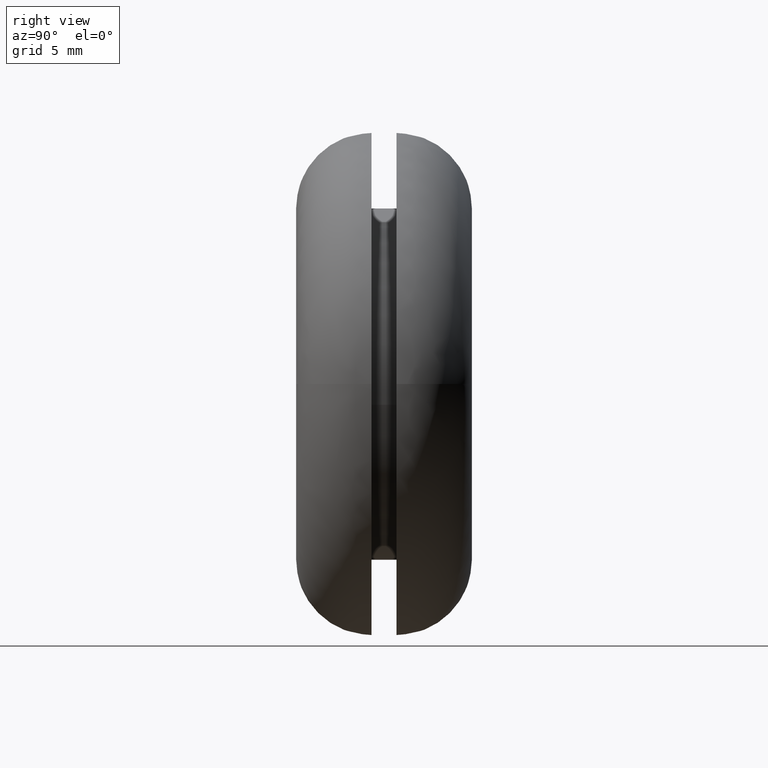
[diagram: clean part render]
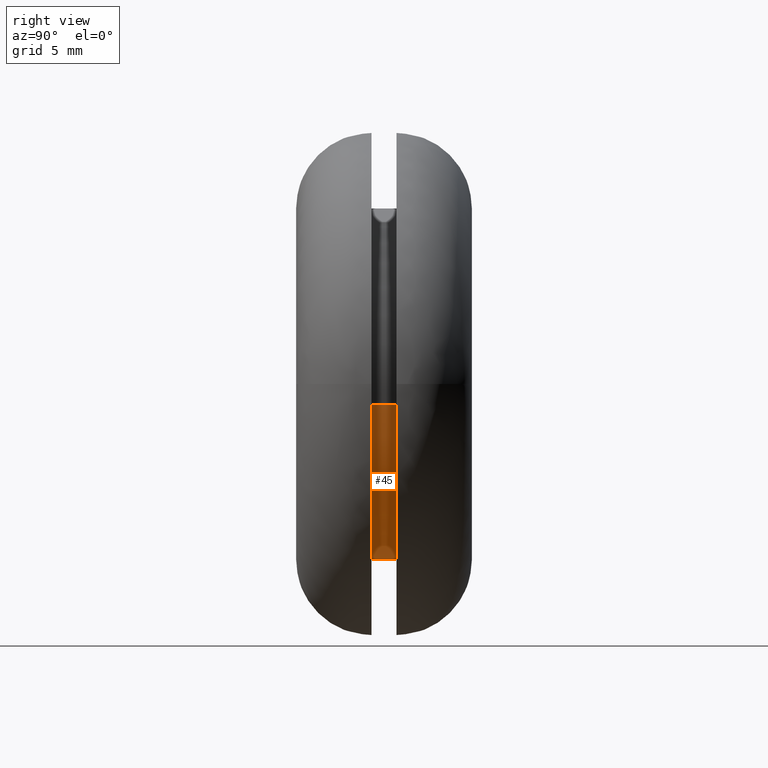
[diagram: same view with one face highlighted and labeled with its STEP entity id]
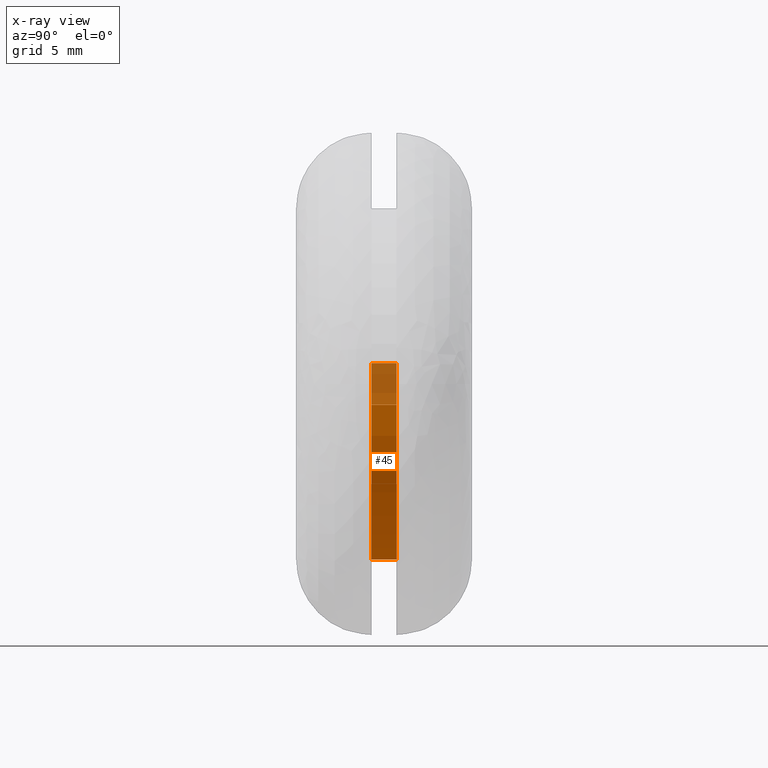
[diagram: x-ray of the same camera — body ghosted, the highlighted face saturated]
A machine part, right view. The second image highlights one B-rep face of the part: STEP entity #45.
The next image is the same camera in x-ray: the body ghosted, the highlighted face saturated — about 21% of this face is hidden behind the body in this view.
In plain terms, the highlighted cylindrical surface (partial cylindrical patch) has radius 7 mm, axis along (0, 1, 0).
Its self-contained STEP definition (entity closure, byte-faithful):
#45=ADVANCED_FACE('',(#107),#106,.T.);
#106=CYLINDRICAL_SURFACE('',#208,7.00000000000E+000);
#107=FACE_OUTER_BOUND('',#209,.T.);
#205=CARTESIAN_POINT('',(5.74092842048E-016,4.02500000000E+000,9.87831843366E-016));
#206=DIRECTION('',(5.05055682711E-016,1.00000000000E+000,4.78646234808E-015));
#207=DIRECTION('',(-9.93009526364E-001,-6.34413156929E-017,1.18034234657E-001));
#208=AXIS2_PLACEMENT_3D('',#205,#206,#207);
#209=EDGE_LOOP('',(#358,#359,#360,#361,#362,#363));
#358=ORIENTED_EDGE('',*,*,#421,.F.);
#359=ORIENTED_EDGE('',*,*,#423,.F.);
#360=ORIENTED_EDGE('',*,*,#430,.T.);
#361=ORIENTED_EDGE('',*,*,#406,.T.);
#362=ORIENTED_EDGE('',*,*,#408,.T.);
#363=ORIENTED_EDGE('',*,*,#431,.F.);
#406=EDGE_CURVE('',#480,#481,#482,.T.);
#408=EDGE_CURVE('',#481,#488,#495,.T.);
#421=EDGE_CURVE('',#585,#586,#587,.T.);
#423=EDGE_CURVE('',#593,#585,#600,.T.);
#430=EDGE_CURVE('',#593,#480,#648,.T.);
#431=EDGE_CURVE('',#586,#488,#654,.T.);
#480=VERTEX_POINT('',#726);
#481=VERTEX_POINT('',#727);
#482=CIRCLE('',#731,7.00000000000E+000);
#488=VERTEX_POINT('',#732);
#495=CIRCLE('',#740,7.00000000000E+000);
#585=VERTEX_POINT('',#801);
#586=VERTEX_POINT('',#802);
#587=CIRCLE('',#806,7.00000000000E+000);
#593=VERTEX_POINT('',#807);
#600=CIRCLE('',#815,7.00000000000E+000);
#648=(BOUNDED_CURVE() B_SPLINE_CURVE(1,(#846,#847),.UNSPECIFIED.,.F.,.F.) B_SPLINE_CURVE_WITH_KNOTS((2,2),(8.33333730703E-002,9.16666640476E-001),.UNSPECIFIED.) CURVE() GEOMETRIC_REPRESENTATION_ITEM() RATIONAL_B_SPLINE_CURVE((1.00000000000E+000,1.00000000000E+000)) REPRESENTATION_ITEM('') );
#654=(BOUNDED_CURVE() B_SPLINE_CURVE(1,(#848,#849),.UNSPECIFIED.,.F.,.F.) B_SPLINE_CURVE_WITH_KNOTS((2,2),(8.33333333348E-002,9.16666666667E-001),.UNSPECIFIED.) CURVE() GEOMETRIC_REPRESENTATION_ITEM() RATIONAL_B_SPLINE_CURVE((7.50000000000E-001,7.50000000000E-001)) REPRESENTATION_ITEM('') );
#726=CARTESIAN_POINT('',(-6.95106668455E+000,4.00000000000E+000,8.26239642538E-001));
#727=CARTESIAN_POINT('',(-1.11022302463E-015,4.00000000000E+000,-7.00000000000E+000));
#728=CARTESIAN_POINT('',(7.88258347484E-013,4.00000000000E+000,1.73772107814E-012));
#729=DIRECTION('',(-1.25995670315E-016,-1.00000000000E+000,1.49764217742E-017));
#730=DIRECTION('',(-1.12382325668E-013,-1.49764217742E-017,-1.00000000000E+000));
#731=AXIS2_PLACEMENT_3D('',#728,#729,#730);
#732=CARTESIAN_POINT('',(6.95092377733E+000,4.00000000000E+000,-8.27441020072E-001));
#737=CARTESIAN_POINT('',(7.88258347484E-013,4.00000000000E+000,1.73772107814E-012));
#738=DIRECTION('',(-1.25995670315E-016,-1.00000000000E+000,1.49764217742E-017));
#739=DIRECTION('',(-1.12382325668E-013,-1.49764217742E-017,-1.00000000000E+000));
#740=AXIS2_PLACEMENT_3D('',#737,#738,#739);
#801=CARTESIAN_POINT('',(-3.33066907388E-015,3.00000000000E+000,-7.00000000000E+000));
#802=CARTESIAN_POINT('',(6.95092377733E+000,3.00000000000E+000,-8.27441020072E-001));
#803=CARTESIAN_POINT('',(8.04689648248E-013,3.00000000000E+000,1.77902137466E-012));
#804=DIRECTION('',(3.61145220425E-014,-1.00000000000E+000,2.43630846704E-013));
#805=DIRECTION('',(-1.15032983139E-013,-2.43630846704E-013,-1.00000000000E+000));
#806=AXIS2_PLACEMENT_3D('',#803,#804,#805);
#807=CARTESIAN_POINT('',(-6.95106668455E+000,3.00000000000E+000,8.26239642538E-001));
#812=CARTESIAN_POINT('',(8.04689648248E-013,3.00000000000E+000,1.77902137466E-012));
#813=DIRECTION('',(3.61145220425E-014,-1.00000000000E+000,2.43630846704E-013));
#814=DIRECTION('',(-1.15032983139E-013,-2.43630846704E-013,-1.00000000000E+000));
#815=AXIS2_PLACEMENT_3D('',#812,#813,#814);
#846=CARTESIAN_POINT('',(-6.95106668455E+000,3.00000004768E+000,8.26239642597E-001));
#847=CARTESIAN_POINT('',(-6.95106668455E+000,3.99999996857E+000,8.26239642597E-001));
#848=CARTESIAN_POINT('',(6.95106668455E+000,3.00000000000E+000,-8.26239642597E-001));
#849=CARTESIAN_POINT('',(6.95106668455E+000,4.00000000000E+000,-8.26239642597E-001));